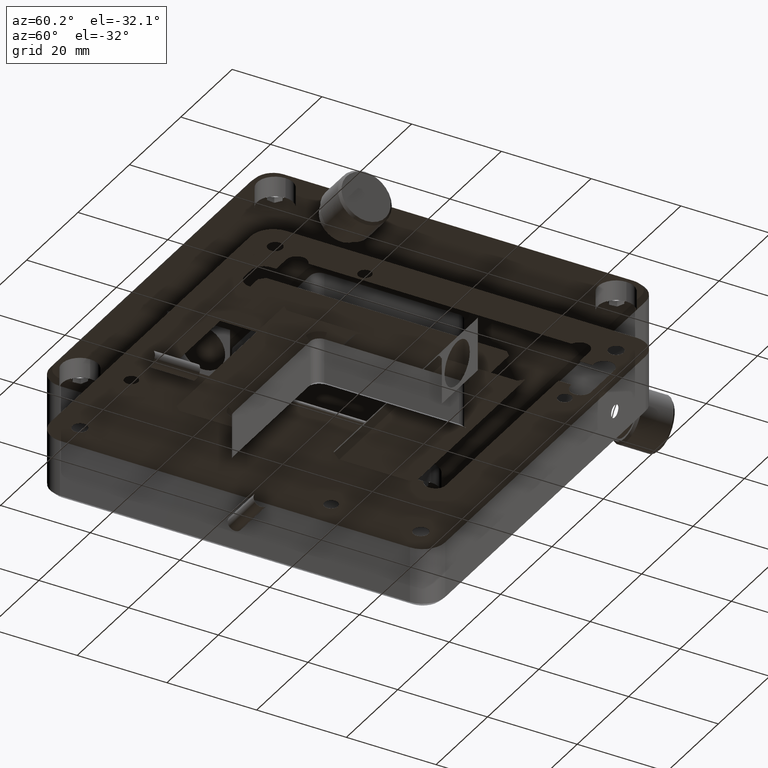
[diagram: clean part render]
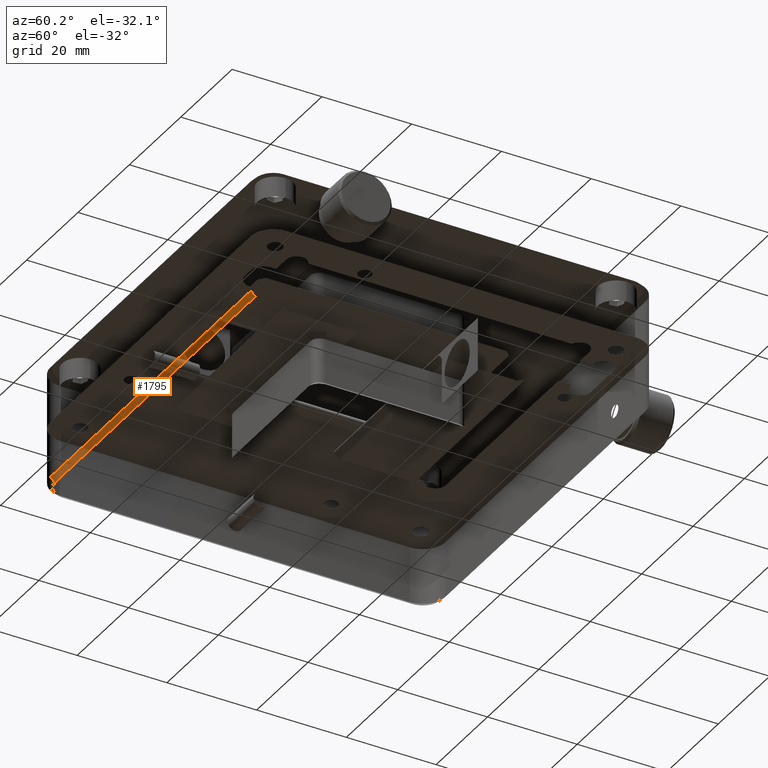
[diagram: same view with one face highlighted and labeled with its STEP entity id]
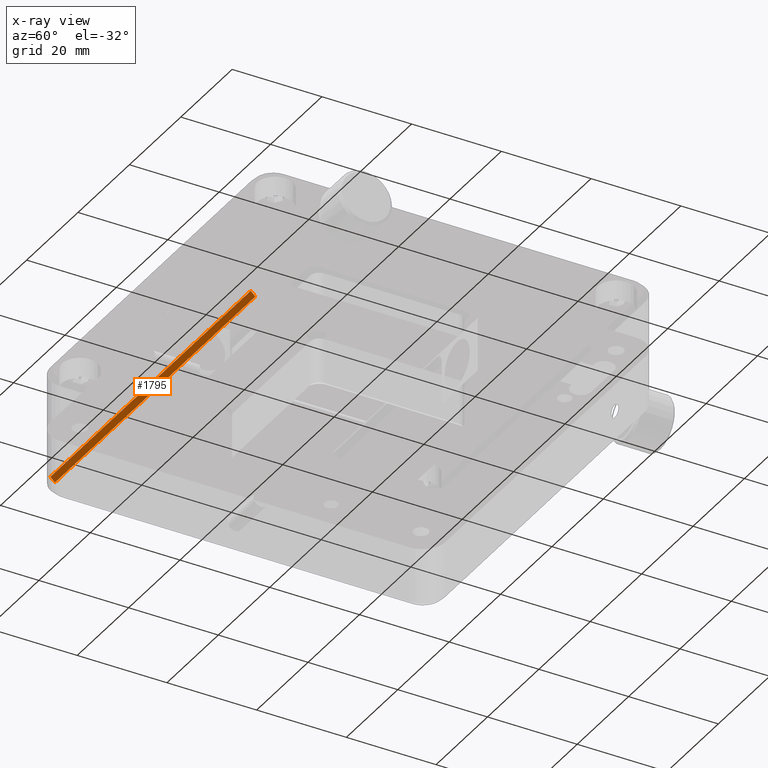
[diagram: x-ray of the same camera — body ghosted, the highlighted face saturated]
A machine part, auxiliary view. The second image highlights one B-rep face of the part: STEP entity #1795.
The next image is the same camera in x-ray: the body ghosted, the highlighted face saturated — about 0% of this face is hidden behind the body in this view.
In plain terms, the highlighted planar face has unit normal (-0, 0.7071, 0.7071).
Its self-contained STEP definition (entity closure, byte-faithful):
#447 = CARTESIAN_POINT ( 'NONE',  ( 88.50874693731117304, -13.31999999999999496, -4.825999999999999623 ) ) ;
#931 = VERTEX_POINT ( 'NONE', #1968 ) ;
#1010 = CARTESIAN_POINT ( 'NONE',  ( 127.5087469373111730, -14.31999999999947271, -3.826000000015125302 ) ) ;
#1479 = VECTOR ( 'NONE', #6491, 1000.000000000000000 ) ;
#1605 = LINE ( 'NONE', #4450, #1479 ) ;
#1795 = ADVANCED_FACE ( 'NONE', ( #3732 ), #5806, .T. ) ;
#1828 = LINE ( 'NONE', #5153, #2971 ) ;
#1847 = EDGE_CURVE ( 'NONE', #6800, #4883, #2057, .T. ) ;
#1968 = CARTESIAN_POINT ( 'NONE',  ( 127.5087469373112015, -13.32000000000876661, -4.825999999991229750 ) ) ;
#2057 = LINE ( 'NONE', #6440, #3066 ) ;
#2075 = ORIENTED_EDGE ( 'NONE', *, *, #4280, .F. ) ;
#2127 = CARTESIAN_POINT ( 'NONE',  ( 49.50874693731118015, -13.32000000000876838, -4.825999999991226197 ) ) ;
#2595 = ORIENTED_EDGE ( 'NONE', *, *, #3239, .T. ) ;
#2971 = VECTOR ( 'NONE', #5725, 1000.000000000000114 ) ;
#3066 = VECTOR ( 'NONE', #4699, 1000.000000000000114 ) ;
#3239 = EDGE_CURVE ( 'NONE', #4883, #4571, #1605, .T. ) ;
#3284 = AXIS2_PLACEMENT_3D ( 'NONE', #3699, #6939, #6407 ) ;
#3468 = CARTESIAN_POINT ( 'NONE',  ( 49.50874693731118015, -14.31999999999947271, -3.826000000015125302 ) ) ;
#3662 = DIRECTION ( 'NONE',  ( 1.000000000000000000, 0.000000000000000000, 0.000000000000000000 ) ) ;
#3699 = CARTESIAN_POINT ( 'NONE',  ( 44.50874693731118015, -14.31999999999999851, -3.825999999999998735 ) ) ;
#3710 = EDGE_CURVE ( 'NONE', #4571, #931, #1828, .T. ) ;
#3732 = FACE_OUTER_BOUND ( 'NONE', #4074, .T. ) ;
#4074 = EDGE_LOOP ( 'NONE', ( #2595, #6046, #2075, #5046 ) ) ;
#4280 = EDGE_CURVE ( 'NONE', #6800, #931, #4764, .T. ) ;
#4450 = CARTESIAN_POINT ( 'NONE',  ( 44.50874693731118015, -14.31999999999999851, -3.825999999999998735 ) ) ;
#4571 = VERTEX_POINT ( 'NONE', #1010 ) ;
#4699 = DIRECTION ( 'NONE',  ( 0.000000000000000000, -0.7071067811865474617, 0.7071067811865474617 ) ) ;
#4764 = LINE ( 'NONE', #447, #4796 ) ;
#4796 = VECTOR ( 'NONE', #3662, 1000.000000000000000 ) ;
#4883 = VERTEX_POINT ( 'NONE', #3468 ) ;
#5046 = ORIENTED_EDGE ( 'NONE', *, *, #1847, .T. ) ;
#5153 = CARTESIAN_POINT ( 'NONE',  ( 127.5087469373112015, -14.31999999999999851, -3.825999999999998735 ) ) ;
#5725 = DIRECTION ( 'NONE',  ( -0.000000000000000000, 0.7071067811865474617, -0.7071067811865474617 ) ) ;
#5806 = PLANE ( 'NONE',  #3284 ) ;
#6046 = ORIENTED_EDGE ( 'NONE', *, *, #3710, .T. ) ;
#6407 = DIRECTION ( 'NONE',  ( 0.000000000000000000, -0.7071067811865474617, 0.7071067811865474617 ) ) ;
#6440 = CARTESIAN_POINT ( 'NONE',  ( 49.50874693731118015, -14.31999999999999851, -3.825999999999998735 ) ) ;
#6491 = DIRECTION ( 'NONE',  ( 1.000000000000000000, 0.000000000000000000, 0.000000000000000000 ) ) ;
#6800 = VERTEX_POINT ( 'NONE', #2127 ) ;
#6939 = DIRECTION ( 'NONE',  ( -0.000000000000000000, 0.7071067811865475727, 0.7071067811865475727 ) ) ;